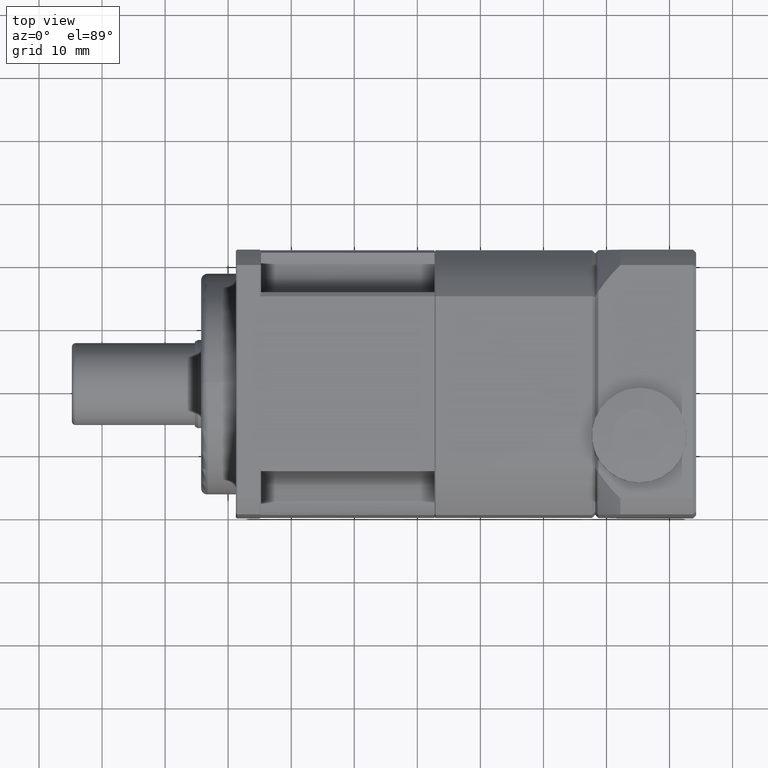
[diagram: clean part render]
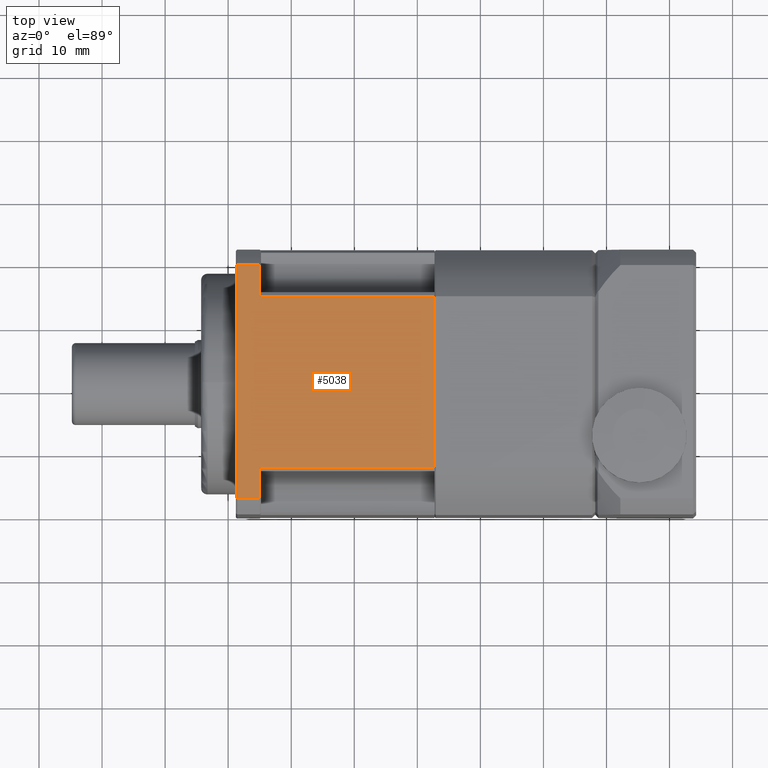
[diagram: same view with one face highlighted and labeled with its STEP entity id]
A machine part, top view. The second image highlights one B-rep face of the part: STEP entity #5038.
In plain terms, the highlighted planar face has unit normal (0, 0, 1).
Its self-contained STEP definition (entity closure, byte-faithful):
#381=LINE('',#8531,#615);
#391=LINE('',#8669,#625);
#396=LINE('',#8720,#630);
#404=LINE('',#8794,#638);
#407=LINE('',#8806,#641);
#408=LINE('',#8808,#642);
#409=LINE('',#8809,#643);
#410=LINE('',#8810,#644);
#615=VECTOR('',#6779,27.1293199325011);
#625=VECTOR('',#6921,4.95559921120161);
#630=VECTOR('',#6958,4.95559921120161);
#638=VECTOR('',#7004,37.0405183549043);
#641=VECTOR('',#7015,3.6);
#642=VECTOR('',#7018,27.7);
#643=VECTOR('',#7019,27.7);
#644=VECTOR('',#7020,3.6);
#823=PLANE('',#5655);
#1251=FACE_OUTER_BOUND('',#1691,.T.);
#1691=EDGE_LOOP('',(#4212,#4213,#4214,#4215,#4216,#4217,#4218,#4219));
#2401=VERTEX_POINT('',#8528);
#2402=VERTEX_POINT('',#8530);
#2447=VERTEX_POINT('',#8666);
#2448=VERTEX_POINT('',#8668);
#2461=VERTEX_POINT('',#8712);
#2462=VERTEX_POINT('',#8719);
#2479=VERTEX_POINT('',#8784);
#2481=VERTEX_POINT('',#8793);
#2990=EDGE_CURVE('',#2401,#2402,#381,.T.);
#3042=EDGE_CURVE('',#2447,#2448,#391,.T.);
#3061=EDGE_CURVE('',#2461,#2462,#396,.T.);
#3087=EDGE_CURVE('',#2481,#2479,#404,.T.);
#3093=EDGE_CURVE('',#2461,#2479,#407,.T.);
#3094=EDGE_CURVE('',#2447,#2402,#408,.T.);
#3095=EDGE_CURVE('',#2401,#2462,#409,.T.);
#3096=EDGE_CURVE('',#2481,#2448,#410,.T.);
#4212=ORIENTED_EDGE('',*,*,#3094,.T.);
#4213=ORIENTED_EDGE('',*,*,#2990,.F.);
#4214=ORIENTED_EDGE('',*,*,#3095,.T.);
#4215=ORIENTED_EDGE('',*,*,#3061,.F.);
#4216=ORIENTED_EDGE('',*,*,#3093,.T.);
#4217=ORIENTED_EDGE('',*,*,#3087,.F.);
#4218=ORIENTED_EDGE('',*,*,#3096,.T.);
#4219=ORIENTED_EDGE('',*,*,#3042,.F.);
#5038=ADVANCED_FACE('',(#1251),#823,.T.);
#5655=AXIS2_PLACEMENT_3D('',#8807,#7016,#7017);
#6779=DIRECTION('',(-4.44089209850037E-16,-1.,9.43516098583778E-15));
#6921=DIRECTION('',(-4.44089209850037E-16,-1.,9.43516098583778E-15));
#6958=DIRECTION('',(-4.44089209850037E-16,-1.,9.43516098583778E-15));
#7004=DIRECTION('',(4.44089209850037E-16,1.,-9.43516098583778E-15));
#7015=DIRECTION('',(-1.,4.44089209850051E-16,1.50008167835232E-15));
#7016=DIRECTION('center_axis',(1.50008167835233E-15,9.43516098583778E-15,
1.));
#7017=DIRECTION('ref_axis',(4.44089209850063E-16,1.,-9.41469124882133E-15));
#7018=DIRECTION('',(1.,-4.44089209850051E-16,-1.50008167835232E-15));
#7019=DIRECTION('',(-1.,4.44089209850051E-16,1.50008167835232E-15));
#7020=DIRECTION('',(1.,-4.44089209850051E-16,-1.50008167835232E-15));
#8528=CARTESIAN_POINT('',(-7.28400498561355,-25.3028251656617,-6.34775529413336));
#8530=CARTESIAN_POINT('',(-7.28400498561357,-52.4321450981628,-6.3477552941331));
#8531=CARTESIAN_POINT('',(-7.28400498561355,-17.8674851319123,-6.34775529413343));
#8666=CARTESIAN_POINT('',(-34.9840049856136,-52.4321450981628,-6.34775529413306));
#8668=CARTESIAN_POINT('',(-34.9840049856136,-57.3877443093644,-6.34775529413301));
#8669=CARTESIAN_POINT('',(-34.9840049856136,-49.3674851319122,-6.34775529413309));
#8712=CARTESIAN_POINT('',(-34.9840049856136,-20.3472259544601,-6.34775529413336));
#8719=CARTESIAN_POINT('',(-34.9840049856136,-25.3028251656617,-6.34775529413331));
#8720=CARTESIAN_POINT('',(-34.9840049856136,-49.3674851319122,-6.34775529413309));
#8784=CARTESIAN_POINT('',(-38.5840049856136,-20.3472259544601,-6.34775529413336));
#8793=CARTESIAN_POINT('',(-38.5840049856136,-57.3877443093644,-6.34775529413301));
#8794=CARTESIAN_POINT('',(-38.5840049856136,-49.3674851319122,-6.34775529413308));
#8806=CARTESIAN_POINT('',(-7.28400498561355,-20.3472259544601,-6.3477552941334));
#8807=CARTESIAN_POINT('Origin',(-7.28400498561357,-59.8674851319122,-6.34775529413303));
#8808=CARTESIAN_POINT('',(-7.28400498561357,-52.4321450981628,-6.3477552941331));
#8809=CARTESIAN_POINT('',(-7.28400498561355,-25.3028251656617,-6.34775529413336));
#8810=CARTESIAN_POINT('',(-7.28400498561357,-57.3877443093644,-6.34775529413306));